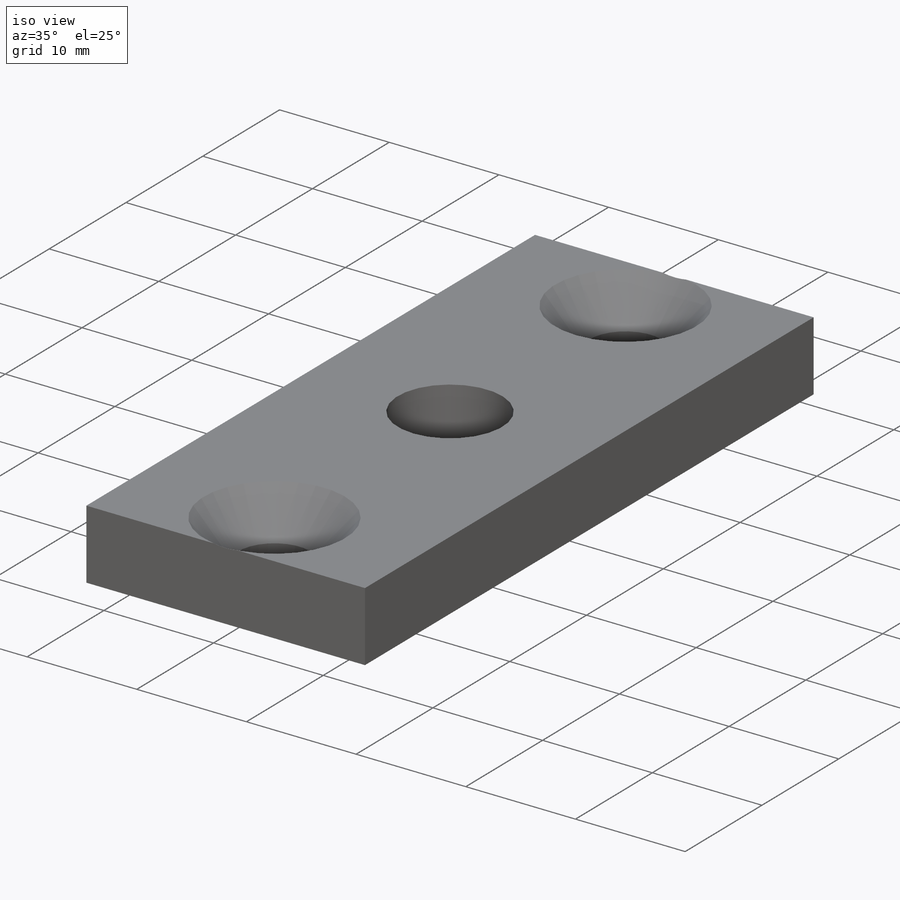
[diagram: iso view]
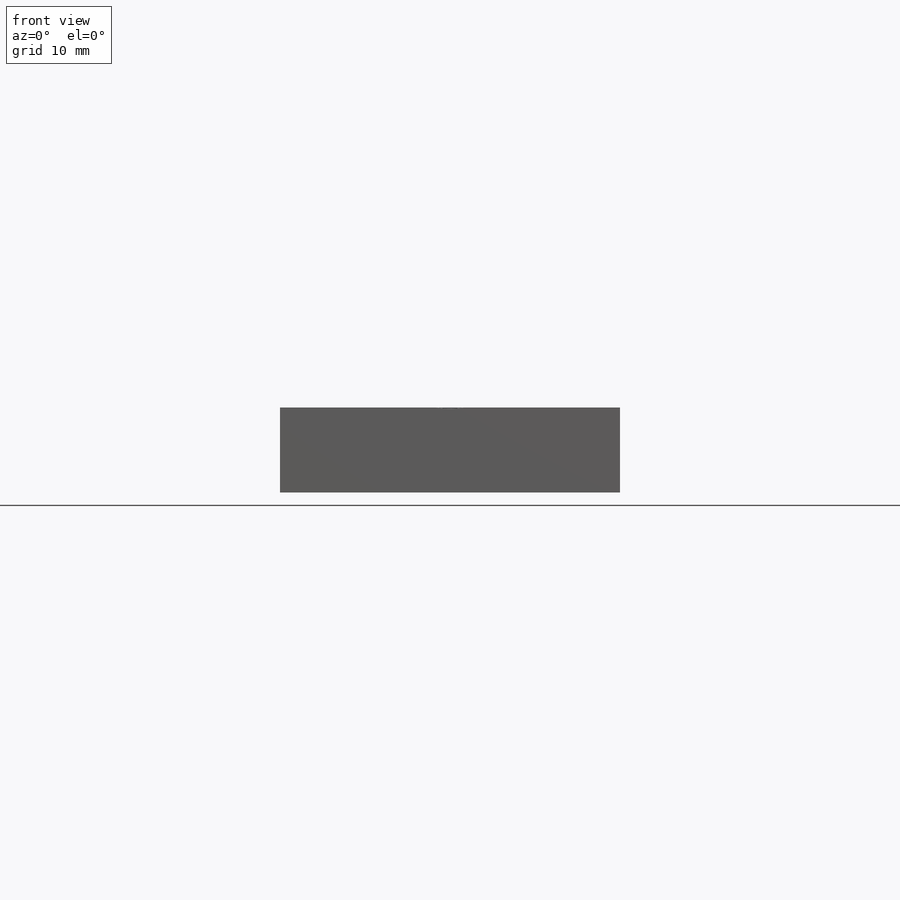
[diagram: front view]
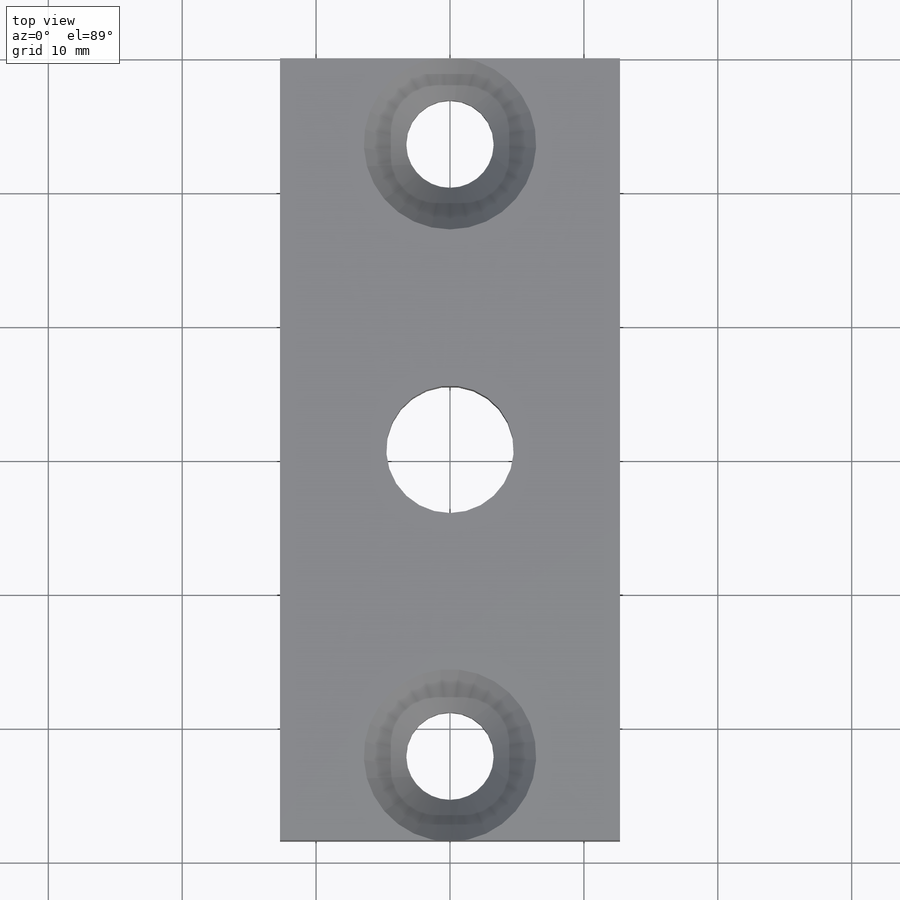
[diagram: top view]
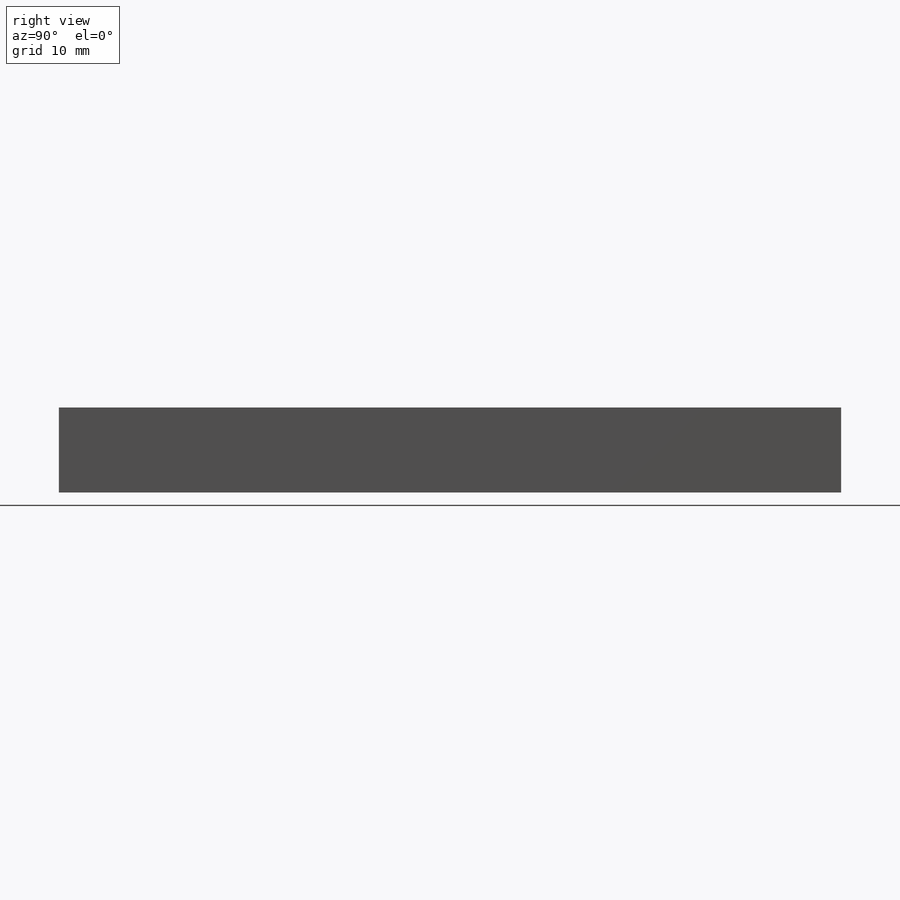
[diagram: right view]
SOLIDWORKS PART (.sldprt)
format: sldprt  version: not decoded by parser v0  size: 230,912 bytes
history: native  units: mm
features: sketch x6, hole x2, material x1, extrude x1 (+12 scaffold rows collapsed)
feature tree (22):
  scaffold x12  (default folders/planes/origin — collapsed)
  material  "Alloy Steel"
  sketch  "Sketch1"  dims[D1=25.4mm D2=6.35mm]
  extrude  "Extrude1"  Depth=58.42mm
  sketch  "Sketch2"  dims[c1.D1=6.35mm c1.D2=11.049mm c1.D3=6.35mm c2.D1=45.72mm c2.D3=6.35mm]
  hole  "CSK for 1/4 Flat Head Machine Screw1"  Diameter=6.5278mm Depth=6.35mm
  sketch  "3DSketch1"
  sketch  "Sketch3"  dims[hole-wizard template sketch: 55 standard entries collapsed; hole parameters kept: c17.Thru Hole Depth=6.35mm c17.Near C'Sink Dia.=12.8778mm c17.D4=~3.666174mm c17.Near C'Sink Angle=82.0deg]
  hole  "3/8 (0.375) Diameter Hole1"  Diameter=9.525mm Depth=6.35mm
  sketch  "3DSketch3"
  sketch  "Sketch5"  dims[hole-wizard template sketch: 61 standard entries collapsed; hole parameters above]
decode coverage: 7 of 9 modeling features carry decoded parameters
note: ~ marks probable driven/reference dimensions
note: suppression state not decoded; provenance and decode notes live in map.json
